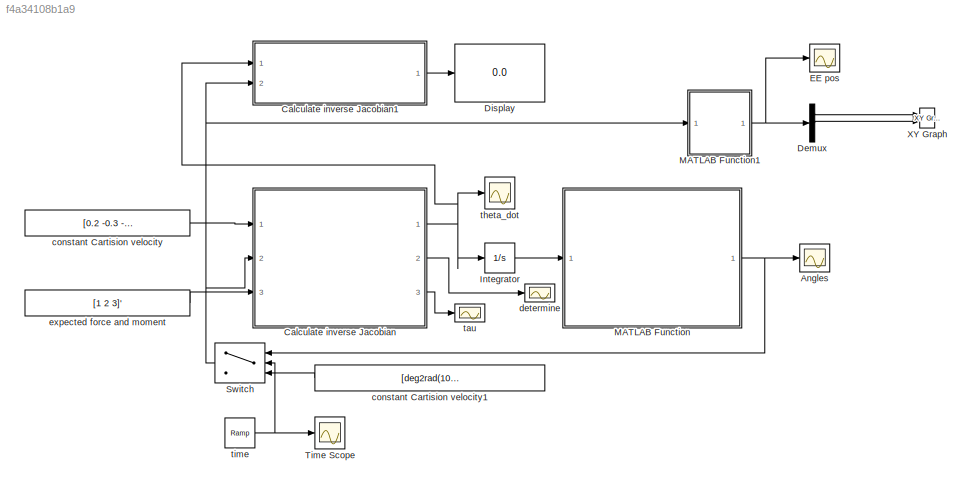
MODEL slx_f4a34108b1a9
KIND model
CONFIG AbsTol = auto
CONFIG FixedStep = 0.1
CONFIG MaxStep = auto
CONFIG MinStep = auto
CONFIG RelTol = 1e-3
CONFIG SampleTimeConstraint = Unconstrained
CONFIG Solver = FixedStepAuto
CONFIG SolverMode = Auto
CONFIG SolverName = FixedStepAuto
CONFIG StartTime = 0.0
CONFIG StopTime = 5
BLOCK [Scope] Angles
  Ports = [1]
  ScopeSpecificationString = Simulink.scopes.TimeScopeBlockCfg('CurrentConfiguration', extmgr.ConfigurationSet(extmgr.Configuration('Core','General UI',true),extmgr.Configuration('Core','Source UI',true),extmgr.Configuration('Sources','WiredSimulink',true,'DataLoggingVariableName','ScopeData1'),extmgr.Configuration('Visuals','Time Domain',true,'SerializedDisplays',{struct('MinYLimReal','-0.57906','MaxYLimReal','0.7462','YLabe...<+1512ch>
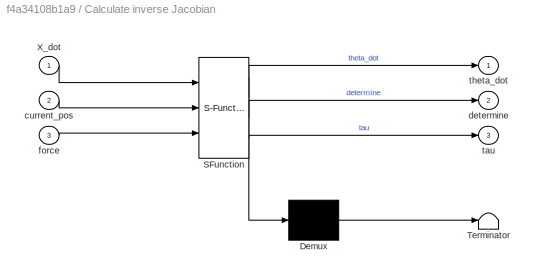
BLOCK [SubSystem] Calculate inverse Jacobian
  ErrorFcn = Stateflow.Translate.translate
  PermitHierarchicalResolution = ExplicitOnly
  Ports = [3, 3]
  RequestExecContextInheritance = off
  SFBlockType = MATLAB Function
  TreatAsAtomicUnit = on
  Variant = off
BLOCK [Demux] Calculate inverse Jacobian/ Demux 
  Outputs = 1
  Ports = [1, 1]
BLOCK [S-Function] Calculate inverse Jacobian/ SFunction 
  EnableBusSupport = on
  FunctionName = sf_sfun
  PortCounts = [3 4]
  Ports = [3, 4]
  SFunctionDeploymentMode = off
  Tag = Stateflow S-Function static_force 2
BLOCK [Terminator] Calculate inverse Jacobian/ Terminator 
BLOCK [Inport] Calculate inverse Jacobian/X_dot
  IconDisplay = Port number
BLOCK [Inport] Calculate inverse Jacobian/current_pos
  IconDisplay = Port number
  Port = 2
BLOCK [Outport] Calculate inverse Jacobian/determine
  IconDisplay = Port number
  Port = 2
BLOCK [Inport] Calculate inverse Jacobian/force
  IconDisplay = Port number
  Port = 3
BLOCK [Outport] Calculate inverse Jacobian/tau
  IconDisplay = Port number
  Port = 3
BLOCK [Outport] Calculate inverse Jacobian/theta_dot
  IconDisplay = Port number
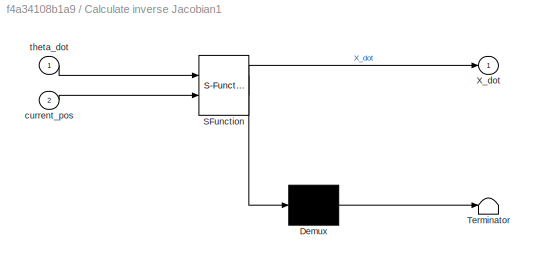
BLOCK [SubSystem] Calculate inverse Jacobian1
  ErrorFcn = Stateflow.Translate.translate
  PermitHierarchicalResolution = ExplicitOnly
  Ports = [2, 1]
  RequestExecContextInheritance = off
  SFBlockType = MATLAB Function
  TreatAsAtomicUnit = on
  Variant = off
BLOCK [Demux] Calculate inverse Jacobian1/ Demux 
  Outputs = 1
  Ports = [1, 1]
BLOCK [S-Function] Calculate inverse Jacobian1/ SFunction 
  EnableBusSupport = on
  FunctionName = sf_sfun
  PortCounts = [2 2]
  Ports = [2, 2]
  SFunctionDeploymentMode = off
  Tag = Stateflow S-Function static_force 4
BLOCK [Terminator] Calculate inverse Jacobian1/ Terminator 
BLOCK [Outport] Calculate inverse Jacobian1/X_dot
  IconDisplay = Port number
BLOCK [Inport] Calculate inverse Jacobian1/current_pos
  IconDisplay = Port number
  Port = 2
BLOCK [Inport] Calculate inverse Jacobian1/theta_dot
  IconDisplay = Port number
BLOCK [Demux] Demux
  DisplayOption = bar
  Outputs = 3
  Ports = [1, 3]
BLOCK [Display] Display
  Decimation = 1
  Ports = [1]
BLOCK [Scope] EE pos
  Ports = [1]
  ScopeSpecificationString = Simulink.scopes.TimeScopeBlockCfg('CurrentConfiguration', extmgr.ConfigurationSet(extmgr.Configuration('Core','General UI',true),extmgr.Configuration('Core','Source UI',true),extmgr.Configuration('Sources','WiredSimulink',true,'DataLoggingVariableName','ScopeData4'),extmgr.Configuration('Visuals','Time Domain',true,'SerializedDisplays',{struct('MinYLimReal','-1.01406','MaxYLimReal','9.59856','YLab...<+1518ch>
BLOCK [Integrator] Integrator
  InitialCondition = [deg2rad(10) deg2rad(20) deg2rad(30)]'
  Ports = [1, 1]
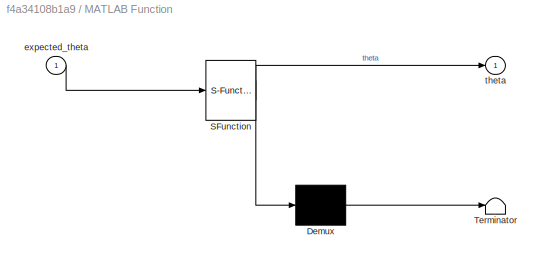
BLOCK [SubSystem] MATLAB Function
  ErrorFcn = Stateflow.Translate.translate
  PermitHierarchicalResolution = ExplicitOnly
  Ports = [1, 1]
  RequestExecContextInheritance = off
  SFBlockType = MATLAB Function
  TreatAsAtomicUnit = on
  Variant = off
BLOCK [Demux] MATLAB Function/ Demux 
  Outputs = 1
  Ports = [1, 1]
BLOCK [S-Function] MATLAB Function/ SFunction 
  EnableBusSupport = on
  FunctionName = sf_sfun
  PortCounts = [1 2]
  Ports = [1, 2]
  SFunctionDeploymentMode = off
  Tag = Stateflow S-Function static_force 1
BLOCK [Terminator] MATLAB Function/ Terminator 
BLOCK [Inport] MATLAB Function/expected_theta
  IconDisplay = Port number
BLOCK [Outport] MATLAB Function/theta
  IconDisplay = Port number
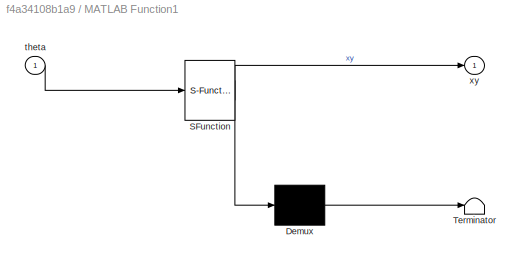
BLOCK [SubSystem] MATLAB Function1
  ErrorFcn = Stateflow.Translate.translate
  PermitHierarchicalResolution = ExplicitOnly
  Ports = [1, 1]
  RequestExecContextInheritance = off
  SFBlockType = MATLAB Function
  TreatAsAtomicUnit = on
  Variant = off
BLOCK [Demux] MATLAB Function1/ Demux 
  Outputs = 1
  Ports = [1, 1]
BLOCK [S-Function] MATLAB Function1/ SFunction 
  EnableBusSupport = on
  FunctionName = sf_sfun
  PortCounts = [1 2]
  Ports = [1, 2]
  SFunctionDeploymentMode = off
  Tag = Stateflow S-Function static_force 3
BLOCK [Terminator] MATLAB Function1/ Terminator 
BLOCK [Inport] MATLAB Function1/theta
  IconDisplay = Port number
BLOCK [Outport] MATLAB Function1/xy
  IconDisplay = Port number
BLOCK [Switch] Switch
  Criteria = u2 > Threshold
  InputSameDT = off
  SaturateOnIntegerOverflow = off
BLOCK [Scope] Time Scope
  Ports = [1]
  ScopeSpecificationString = Simulink.scopes.TimeScopeBlockCfg('CurrentConfiguration', extmgr.ConfigurationSet(extmgr.Configuration('Core','General UI',true),extmgr.Configuration('Core','Source UI',true),extmgr.Configuration('Sources','WiredSimulink',true),extmgr.Configuration('Visuals','Time Domain',true,'SerializedDisplays',{struct('MinYLimReal','-0.625','MaxYLimReal','5.625','YLabelReal','','MinYLimMag','0.00000','MaxYLimM...<+1343ch>
BLOCK [Reference] XY Graph  REF=simulink/Sinks/XY Graph
  Ports = [2]
  SourceBlock = simulink/Sinks/XY Graph
  SourceType = XY scope.
BLOCK [Constant] constant Cartision velocity
  Value = [0.2 -0.3 -0.2]'
BLOCK [Constant] constant Cartision velocity1
  Value = [deg2rad(10) deg2rad(20) deg2rad(30)]'
BLOCK [Scope] determine 
  Ports = [1]
  ScopeSpecificationString = Simulink.scopes.TimeScopeBlockCfg('CurrentConfiguration', extmgr.ConfigurationSet(extmgr.Configuration('Core','General UI',true),extmgr.Configuration('Core','Source UI',true),extmgr.Configuration('Sources','WiredSimulink',true,'DataLoggingVariableName','ScopeData3'),extmgr.Configuration('Visuals','Time Domain',true,'SerializedDisplays',{struct('MinYLimReal','2.58229','MaxYLimReal','7.39141','YLabe...<+1494ch>
BLOCK [Constant] expected force and moment
  Value = [1 2 3]'
BLOCK [Scope] tau
  Ports = [1]
  ScopeSpecificationString = Simulink.scopes.TimeScopeBlockCfg('CurrentConfiguration', extmgr.ConfigurationSet(extmgr.Configuration('Core','General UI',true),extmgr.Configuration('Core','Source UI',true),extmgr.Configuration('Sources','WiredSimulink',true,'DataLoggingVariableName','ScopeData5'),extmgr.Configuration('Visuals','Time Domain',true,'SerializedDisplays',{struct('MinYLimReal','1.47045','MaxYLimReal','19.44545','YLab...<+1563ch>
BLOCK [Scope] theta_dot
  Ports = [1]
  ScopeSpecificationString = Simulink.scopes.TimeScopeBlockCfg('CurrentConfiguration', extmgr.ConfigurationSet(extmgr.Configuration('Core','General UI',true),extmgr.Configuration('Core','Source UI',true),extmgr.Configuration('Sources','WiredSimulink',true,'DataLoggingVariableName','ScopeData2'),extmgr.Configuration('Visuals','Time Domain',true,'SerializedDisplays',{struct('MinYLimReal','-0.55613','MaxYLimReal','0.38032','YLab...<+1576ch>
BLOCK [Reference] time  REF=simulink/Sources/Ramp
  Ports = [0, 1]
  SourceBlock = simulink/Sources/Ramp
  SourceType = Ramp
LINE Calculate inverse Jacobian1:1 -> Display:1
NET Calculate inverse Jacobian:1 -> Calculate inverse Jacobian1:1, Integrator:1, theta_dot:1
LINE Calculate inverse Jacobian:2 -> determine :1
LINE Calculate inverse Jacobian:3 -> tau:1
LINE Demux:1 -> XY Graph:1
LINE Demux:2 -> XY Graph:2
LINE Integrator:1 -> MATLAB Function:1
NET MATLAB Function1:1 -> Demux:1, EE pos:1
NET MATLAB Function:1 -> Angles:1, Switch:1
NET Switch:1 -> Calculate inverse Jacobian1:2, Calculate inverse Jacobian:2, MATLAB Function1:1
LINE constant Cartision velocity1:1 -> Switch:3
LINE constant Cartision velocity:1 -> Calculate inverse Jacobian:1
LINE expected force and moment:1 -> Calculate inverse Jacobian:3
NET time:1 -> Switch:2, Time Scope:1
note: NET lines group one-source signal fan-out (src -> all destinations, sorted); 1:1 wires keep LINE
CHART MATLAB Function states=1 transitions=1
  STATE_LABEL 'eML_blk_kernel()'
  STATE_LABEL 'SCRIPT:\nfunction theta = SCARA_Robot(expected_theta)\n%# this is the robot simulator,where output angle is equal to input angle\n\ntheta = expected_theta;'
CHART Calculate inverse Jacobian states=1 transitions=1
  STATE_LABEL 'eML_blk_kernel()'
  STATE_LABEL "SCRIPT:\nfunction [theta_dot,determine,tau] = inv_Jacobian(X_dot,current_pos,force)\n% This function is to calculate the inverse Jacobian\n% X_dot represents vector of [x_dot y_dot omega_z]'\n%\nL1 = 4;\nL2 = 3;\nL3 = 2;\n\nt1 = current_pos(1);\nt2 = current_pos(2);\nt3 = current_pos(3);\nJacobian = [-L1*sin(t1)-L2*sin(t1+t2)-L3*sin(t1+t2+t3) -L2*sin(t1+t2)-L3*sin(t1+t2+t3) -L3*sin(t1+t2+t3);\n            L1*c...<+294ch>"
CHART MATLAB Function1 states=1 transitions=1
  STATE_LABEL 'eML_blk_kernel()'
  STATE_LABEL 'SCRIPT:\nfunction xy = FK(theta)\n%# this is the robot simulator,where output angle is equal to input angle\nt1 = theta(1);\nt2 = theta(2);\nt3 = theta(3);\nL1=4;\nL2 = 3;\nL3 = 2;\nT01 = [cos(t1) -sin(t1) 0 0;\n       sin(t1)  cos(t1) 0 0 ;\n        0        0      1 0 ;\n        0        0      0 1];\n    \nT12 = [cos(t2) -sin(t2) 0 L1;\n       sin(t2)  cos(t2) 0 0 ;\n        0        0      1 0 ;\n        0    ...<+384ch>'
CHART Calculate inverse Jacobian1 states=1 transitions=1
  STATE_LABEL 'eML_blk_kernel()'
  STATE_LABEL "SCRIPT:\nfunction X_dot = Jacobian(theta_dot,current_pos)\n% This function is to calculate the inverse Jacobian\n% X_dot represents vector of [x_dot y_dot omega_z]'\n%\nL1 = 4;\nL2 = 3;\nL3 = 2;\n\nt1 = current_pos(1);\nt2 = current_pos(2);\nt3 = current_pos(3);\nJacobian = [-L1*sin(t1)-L2*sin(t1+t2)-L3*sin(t1+t2+t3) -L2*sin(t1+t2)-L3*sin(t1+t2+t3) -L3*sin(t1+t2+t3);\n            L1*cos(t1)+L2*cos(t1+t2)+L3*co...<+213ch>"
